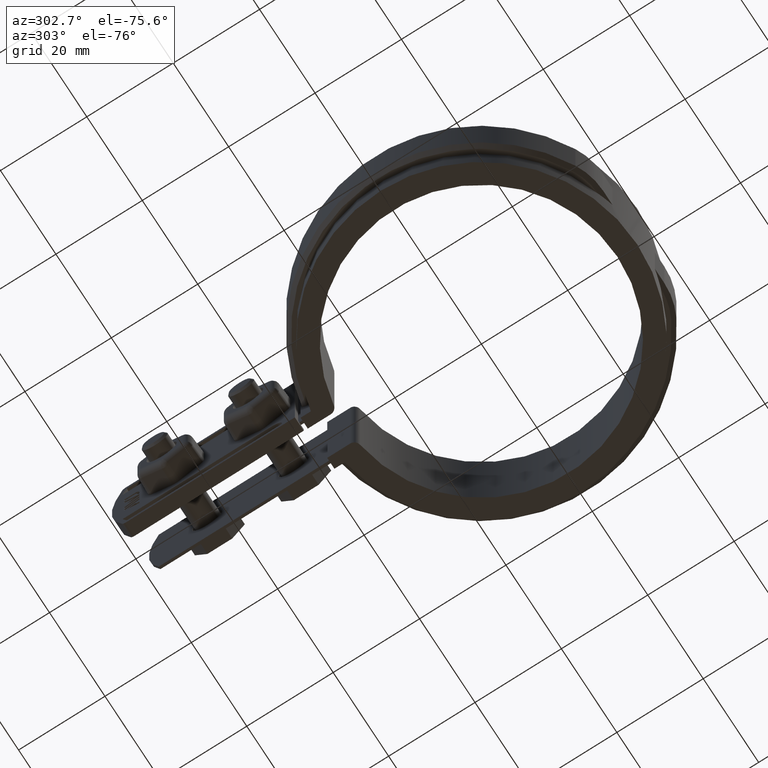
[diagram: clean part render]
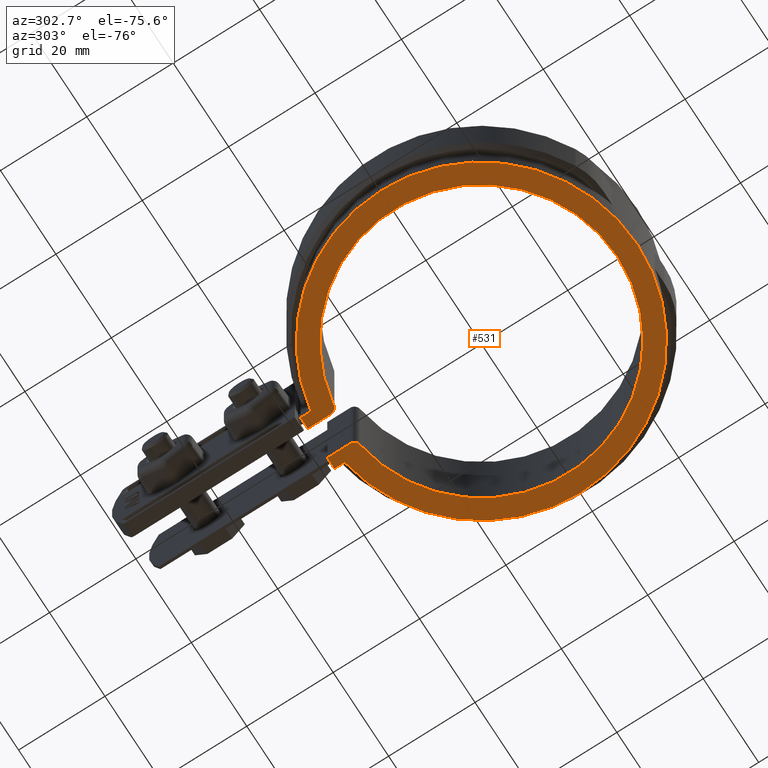
[diagram: same view with one face highlighted and labeled with its STEP entity id]
A machine part, auxiliary view. The second image highlights one B-rep face of the part: STEP entity #531.
In plain terms, the highlighted planar face has unit normal (0, 0, 1).
Its self-contained STEP definition (entity closure, byte-faithful):
#531 = ADVANCED_FACE( '', ( #968 ), #969, .F. );
#968 = FACE_OUTER_BOUND( '', #1730, .T. );
#969 = PLANE( '', #1731 );
#1730 = EDGE_LOOP( '', ( #4465, #4466, #4467, #4468, #4469, #4470, #4471, #4472, #4473, #4474 ) );
#1731 = AXIS2_PLACEMENT_3D( '', #4475, #4476, #4477 );
#4465 = ORIENTED_EDGE( '', *, *, #7109, .F. );
#4466 = ORIENTED_EDGE( '', *, *, #7097, .F. );
#4467 = ORIENTED_EDGE( '', *, *, #7110, .F. );
#4468 = ORIENTED_EDGE( '', *, *, #6992, .F. );
#4469 = ORIENTED_EDGE( '', *, *, #7077, .F. );
#4470 = ORIENTED_EDGE( '', *, *, #7050, .T. );
#4471 = ORIENTED_EDGE( '', *, *, #7075, .T. );
#4472 = ORIENTED_EDGE( '', *, *, #7070, .T. );
#4473 = ORIENTED_EDGE( '', *, *, #7078, .F. );
#4474 = ORIENTED_EDGE( '', *, *, #7111, .F. );
#4475 = CARTESIAN_POINT( '', ( 0.000000000000000, 0.000000000000000, -26.5000000000000 ) );
#4476 = DIRECTION( '', ( 0.000000000000000, 0.000000000000000, 1.00000000000000 ) );
#4477 = DIRECTION( '', ( -1.00000000000000, 6.50521303491303E-017, 0.000000000000000 ) );
#6992 = EDGE_CURVE( '', #8001, #8003, #8004, .T. );
#7050 = EDGE_CURVE( '', #8108, #8106, #8109, .T. );
#7070 = EDGE_CURVE( '', #8140, #8141, #8142, .T. );
#7075 = EDGE_CURVE( '', #8106, #8140, #8149, .F. );
#7077 = EDGE_CURVE( '', #8108, #8001, #8151, .T. );
#7078 = EDGE_CURVE( '', #8152, #8141, #8153, .T. );
#7097 = EDGE_CURVE( '', #8185, #8187, #8188, .T. );
#7109 = EDGE_CURVE( '', #8187, #8210, #8211, .T. );
#7110 = EDGE_CURVE( '', #8003, #8185, #8212, .T. );
#7111 = EDGE_CURVE( '', #8210, #8152, #8213, .T. );
#8001 = VERTEX_POINT( '', #10178 );
#8003 = VERTEX_POINT( '', #10181 );
#8004 = LINE( '', #10182, #10183 );
#8106 = VERTEX_POINT( '', #10760 );
#8108 = VERTEX_POINT( '', #10763 );
#8109 = CIRCLE( '', #10764, 1.50000000000000 );
#8140 = VERTEX_POINT( '', #10805 );
#8141 = VERTEX_POINT( '', #10806 );
#8142 = CIRCLE( '', #10807, 1.50000000000000 );
#8149 = CIRCLE( '', #10816, 31.5000000000000 );
#8151 = LINE( '', #10819, #10820 );
#8152 = VERTEX_POINT( '', #10821 );
#8153 = LINE( '', #10822, #10823 );
#8185 = VERTEX_POINT( '', #10870 );
#8187 = VERTEX_POINT( '', #10873 );
#8188 = CIRCLE( '', #10874, 36.0950000000000 );
#8210 = VERTEX_POINT( '', #10906 );
#8211 = LINE( '', #10907, #10908 );
#8212 = LINE( '', #10909, #10910 );
#8213 = LINE( '', #10911, #10912 );
#10178 = CARTESIAN_POINT( '', ( -3.49999999999999, 37.9500000000000, -26.5000000000000 ) );
#10181 = CARTESIAN_POINT( '', ( -6.09999999999994, 37.9500000000000, -26.5000000000000 ) );
#10182 = CARTESIAN_POINT( '', ( -5.10000000000000, 37.9500000000000, -26.5000000000000 ) );
#10183 = VECTOR( '', #13670, 1000.00000000000 );
#10760 = CARTESIAN_POINT( '', ( -4.77272727272726, 31.1363304578456, -26.5000000000000 ) );
#10763 = CARTESIAN_POINT( '', ( -3.49999999999999, 32.6190128606002, -26.5000000000000 ) );
#10764 = AXIS2_PLACEMENT_3D( '', #13719, #13720, #13721 );
#10805 = CARTESIAN_POINT( '', ( 4.77272727272728, 31.1363304578456, -26.5000000000000 ) );
#10806 = CARTESIAN_POINT( '', ( 3.50000000000000, 32.6190128606002, -26.5000000000000 ) );
#10807 = AXIS2_PLACEMENT_3D( '', #13759, #13760, #13761 );
#10816 = AXIS2_PLACEMENT_3D( '', #13770, #13771, #13772 );
#10819 = CARTESIAN_POINT( '', ( -3.49999999999999, 31.2999205270556, -26.5000000000000 ) );
#10820 = VECTOR( '', #13774, 1000.00000000000 );
#10821 = CARTESIAN_POINT( '', ( 3.50000000000001, 37.9500000000000, -26.5000000000000 ) );
#10822 = CARTESIAN_POINT( '', ( 3.50000000000000, 37.9500000000000, -26.5000000000000 ) );
#10823 = VECTOR( '', #13775, 1000.00000000000 );
#10870 = CARTESIAN_POINT( '', ( -6.09999999999994, 35.5758207916557, -26.5000000000000 ) );
#10873 = CARTESIAN_POINT( '', ( 6.10000000000002, 35.5758207916557, -26.5000000000000 ) );
#10874 = AXIS2_PLACEMENT_3D( '', #13807, #13808, #13809 );
#10906 = CARTESIAN_POINT( '', ( 6.10000000000006, 37.9500000000000, -26.5000000000000 ) );
#10907 = CARTESIAN_POINT( '', ( 6.10000000000006, 35.5758207916557, -26.5000000000000 ) );
#10908 = VECTOR( '', #13829, 1000.00000000000 );
#10909 = CARTESIAN_POINT( '', ( -6.09999999999994, 37.9500000000000, -26.5000000000000 ) );
#10910 = VECTOR( '', #13830, 1000.00000000000 );
#10911 = CARTESIAN_POINT( '', ( 6.10000000000005, 37.9500000000000, -26.5000000000000 ) );
#10912 = VECTOR( '', #13831, 1000.00000000000 );
#13670 = DIRECTION( '', ( -1.00000000000000, -1.23259516440783E-032, 0.000000000000000 ) );
#13719 = CARTESIAN_POINT( '', ( -4.99999999999999, 32.6190128606002, -26.5000000000000 ) );
#13720 = DIRECTION( '', ( 0.000000000000000, 0.000000000000000, -1.00000000000000 ) );
#13721 = DIRECTION( '', ( -1.00000000000000, 0.000000000000000, 0.000000000000000 ) );
#13759 = CARTESIAN_POINT( '', ( 5.00000000000000, 32.6190128606002, -26.5000000000000 ) );
#13760 = DIRECTION( '', ( 0.000000000000000, 0.000000000000000, -1.00000000000000 ) );
#13761 = DIRECTION( '', ( -1.00000000000000, 0.000000000000000, 0.000000000000000 ) );
#13770 = CARTESIAN_POINT( '', ( 0.000000000000000, 0.000000000000000, -26.5000000000000 ) );
#13771 = DIRECTION( '', ( 0.000000000000000, 0.000000000000000, -1.00000000000000 ) );
#13772 = DIRECTION( '', ( -1.00000000000000, 0.000000000000000, 0.000000000000000 ) );
#13774 = DIRECTION( '', ( 6.07153216591882E-017, 1.00000000000000, 0.000000000000000 ) );
#13775 = DIRECTION( '', ( -6.07153216591882E-017, -1.00000000000000, 0.000000000000000 ) );
#13807 = CARTESIAN_POINT( '', ( 0.000000000000000, 0.000000000000000, -26.5000000000000 ) );
#13808 = DIRECTION( '', ( 0.000000000000000, 0.000000000000000, 1.00000000000000 ) );
#13809 = DIRECTION( '', ( 1.00000000000000, -6.50521303491303E-017, 0.000000000000000 ) );
#13829 = DIRECTION( '', ( 6.50521303491303E-017, 1.00000000000000, 0.000000000000000 ) );
#13830 = DIRECTION( '', ( -6.50521303491303E-017, -1.00000000000000, 0.000000000000000 ) );
#13831 = DIRECTION( '', ( -1.00000000000000, -1.23259516440783E-032, 0.000000000000000 ) );